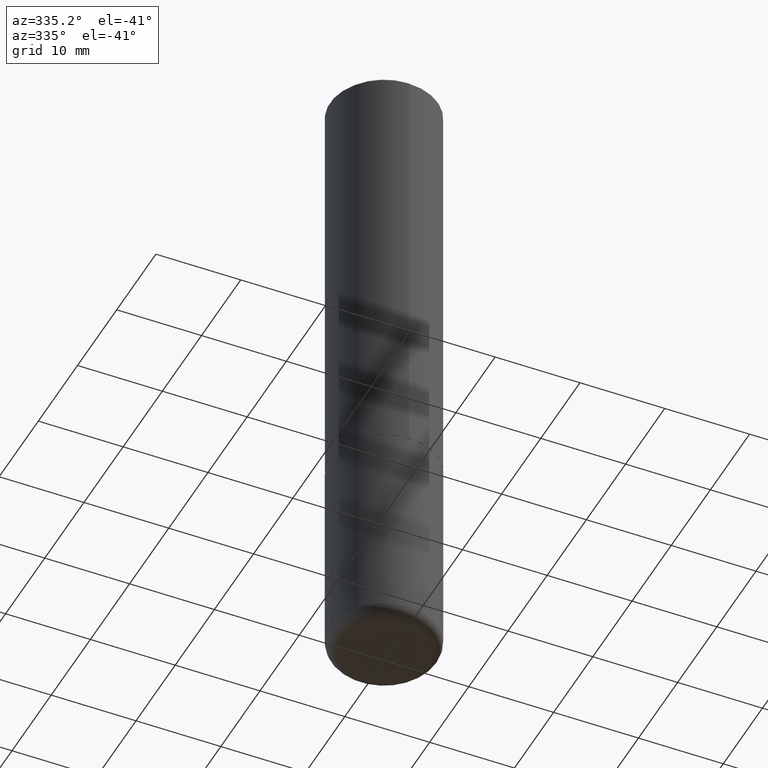
[diagram: clean part render]
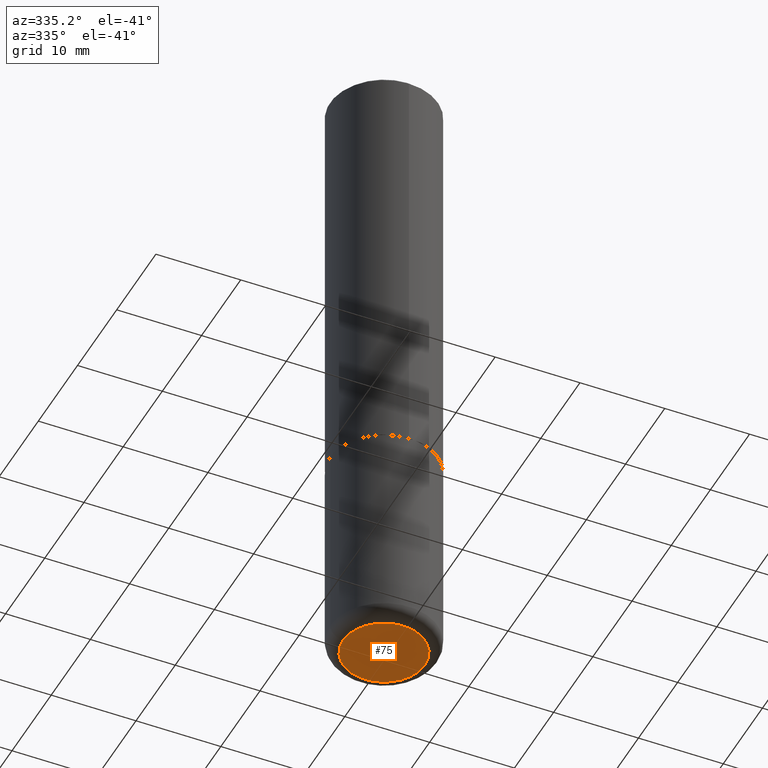
[diagram: same view with one face highlighted and labeled with its STEP entity id]
A machine part, auxiliary view. The second image highlights one B-rep face of the part: STEP entity #75.
In plain terms, the highlighted planar face has unit normal (0, -0, -1).
Its self-contained STEP definition (entity closure, byte-faithful):
#6 = EDGE_CURVE ( 'NONE', #182, #209, #66, .T. ) ;
#13 = AXIS2_PLACEMENT_3D ( 'NONE', #350, #319, #129 ) ;
#22 = DIRECTION ( 'NONE',  ( -1.000000000000000000, 6.982962677686265922E-15, -4.876176775795935793E-29 ) ) ;
#44 = ORIENTED_EDGE ( 'NONE', *, *, #6, .F. ) ;
#48 = EDGE_LOOP ( 'NONE', ( #92, #44 ) ) ;
#66 = CIRCLE ( 'NONE', #13, 0.1899999999999999745 ) ;
#75 = ADVANCED_FACE ( 'NONE', ( #409 ), #81, .T. ) ;
#81 = PLANE ( 'NONE',  #247 ) ;
#88 = DIRECTION ( 'NONE',  ( -2.445468806185136597E-29, 3.491481338843145583E-15, 1.000000000000000000 ) ) ;
#92 = ORIENTED_EDGE ( 'NONE', *, *, #142, .F. ) ;
#122 = CARTESIAN_POINT ( 'NONE',  ( 7.336406418555408669E-29, -1.047444401652943478E-14, -2.999999999999999556 ) ) ;
#129 = DIRECTION ( 'NONE',  ( 1.000000000000000000, -6.982962677686273021E-15, 0.000000000000000000 ) ) ;
#142 = EDGE_CURVE ( 'NONE', #209, #182, #240, .T. ) ;
#182 = VERTEX_POINT ( 'NONE', #411 ) ;
#197 = CARTESIAN_POINT ( 'NONE',  ( 0.1899999999999999745, -1.180120692528982640E-14, -2.999999999999999556 ) ) ;
#209 = VERTEX_POINT ( 'NONE', #197 ) ;
#224 = DIRECTION ( 'NONE',  ( 1.000000000000000000, -6.982962677686273021E-15, 0.000000000000000000 ) ) ;
#240 = CIRCLE ( 'NONE', #332, 0.1899999999999999745 ) ;
#247 = AXIS2_PLACEMENT_3D ( 'NONE', #317, #403, #22 ) ;
#317 = CARTESIAN_POINT ( 'NONE',  ( 1.336053039146161825E-28, -1.847555615484388985E-15, -2.999999999999999556 ) ) ;
#319 = DIRECTION ( 'NONE',  ( -2.445468806185136597E-29, 3.491481338843145583E-15, 1.000000000000000000 ) ) ;
#332 = AXIS2_PLACEMENT_3D ( 'NONE', #122, #88, #224 ) ;
#350 = CARTESIAN_POINT ( 'NONE',  ( 7.336406418555408669E-29, -1.047444401652943478E-14, -2.999999999999999556 ) ) ;
#403 = DIRECTION ( 'NONE',  ( 2.438088387897960049E-29, -3.491481338843145188E-15, -1.000000000000000000 ) ) ;
#409 = FACE_OUTER_BOUND ( 'NONE', #48, .T. ) ;
#411 = CARTESIAN_POINT ( 'NONE',  ( -0.1899999999999999745, -8.806505557691924342E-15, -2.999999999999999556 ) ) ;